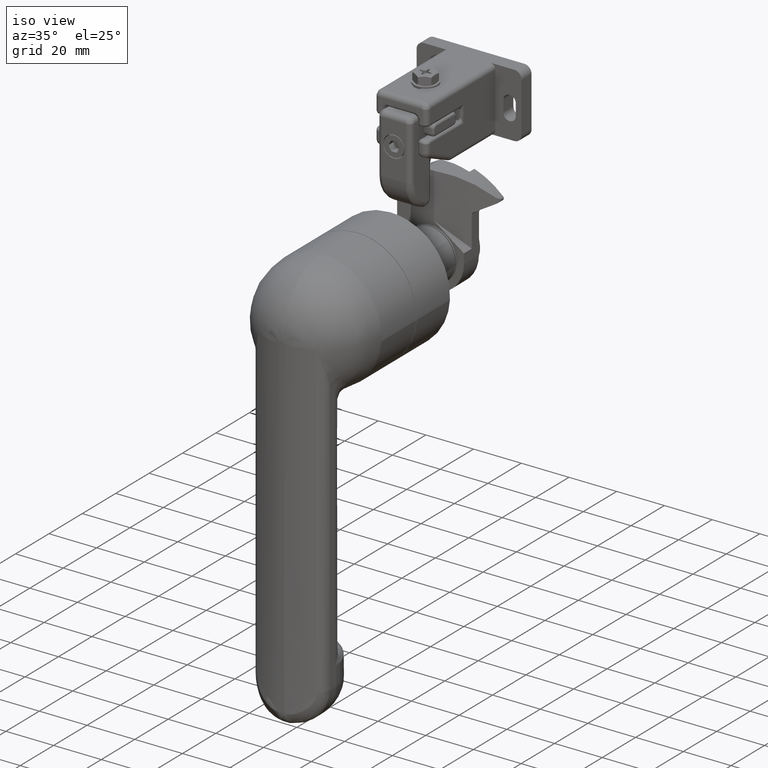
[diagram: clean part render]
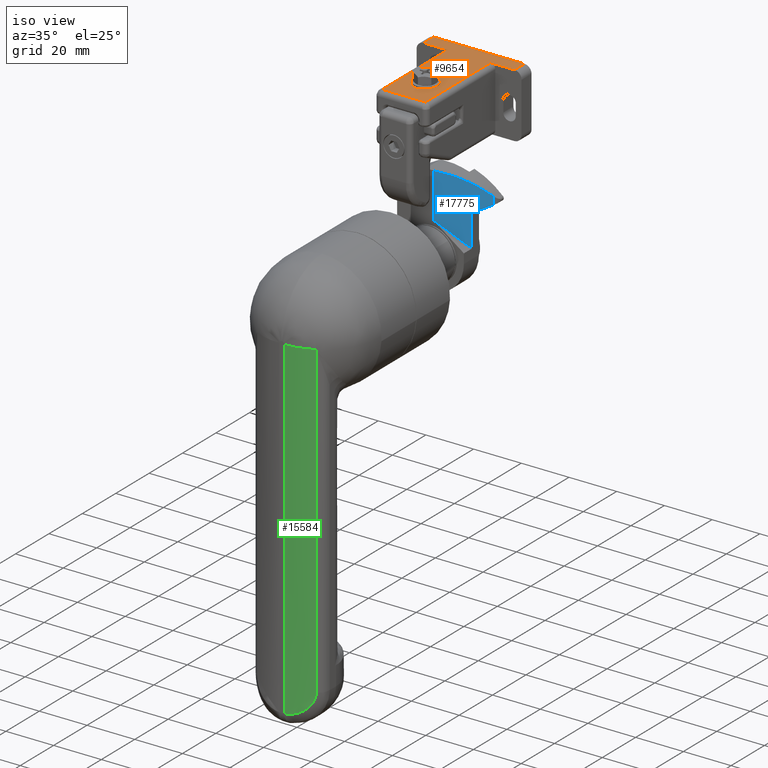
[diagram: same view with three faces highlighted in distinct colors, each labeled with its STEP entity id]
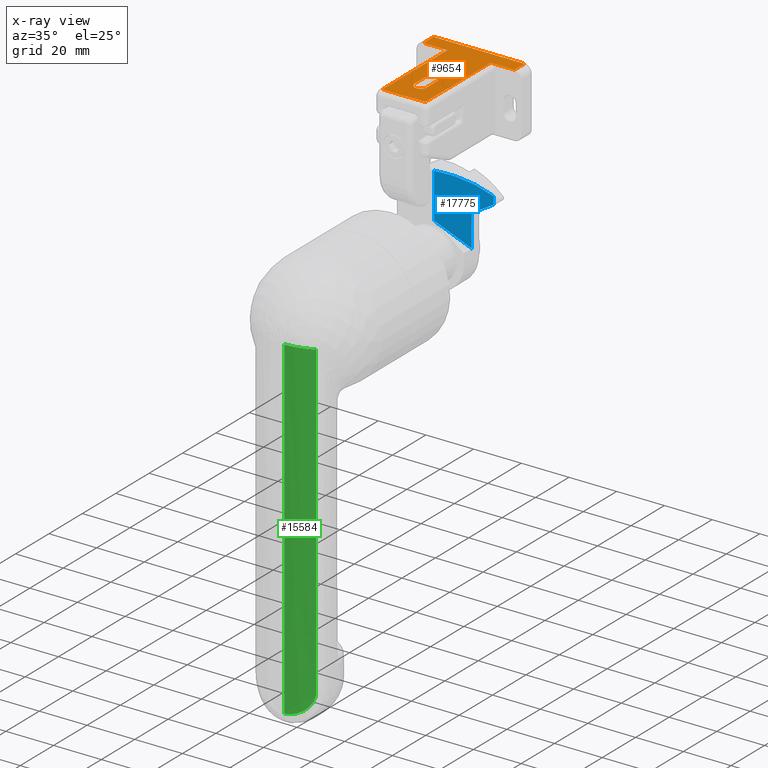
[diagram: x-ray of the same camera — body ghosted, the three highlighted faces saturated]
A machine part, iso view with three faces highlighted in distinct colors.
The next image is the same camera in x-ray (body ghosted, the three faces saturated) — at least one of them is partly hidden behind the body in this view.
Their STEP definitions:

[orange] entity #9654 — the highlighted face is a freeform B-spline surface patch.
#7510=CARTESIAN_POINT('',(-25.249999999969301,31.999999999956099,60.999999999670202));
#7511=VERTEX_POINT('',#7510);
#7512=CARTESIAN_POINT('',(-15.250000000033280,31.999999999946098,60.999999999670202));
#7513=VERTEX_POINT('',#7512);
#7514=CARTESIAN_POINT('',(-25.249999999969301,31.999999999956099,60.999999999670202));
#7515=CARTESIAN_POINT('',(-15.250000000033280,31.999999999946098,60.999999999670202));
#7516=QUASI_UNIFORM_CURVE('',1,(#7514,#7515),.UNSPECIFIED.,.F.,.U.);
#7517=EDGE_CURVE('',#7511,#7513,#7516,.T.);
#7605=CARTESIAN_POINT('',(-25.249999999969301,38.0,60.999999999670202));
#7606=VERTEX_POINT('',#7605);
#7619=CARTESIAN_POINT('',(12.749999999966651,38.0,60.999999999670202));
#7620=VERTEX_POINT('',#7619);
#7621=CARTESIAN_POINT('',(12.749999999966651,38.0,60.999999999670202));
#7622=CARTESIAN_POINT('',(-25.249999999969301,38.0,60.999999999670202));
#7623=QUASI_UNIFORM_CURVE('',1,(#7621,#7622),.UNSPECIFIED.,.F.,.U.);
#7624=EDGE_CURVE('',#7620,#7606,#7623,.T.);
#8564=CARTESIAN_POINT('',(2.749999999966720,-7.000000000826603,60.999999999670202));
#8565=VERTEX_POINT('',#8564);
#8624=CARTESIAN_POINT('',(-15.250000000033280,-7.000000000826603,60.999999999670202));
#8625=VERTEX_POINT('',#8624);
#8645=CARTESIAN_POINT('',(-15.250000000033280,-7.000000000826603,60.999999999670202));
#8646=CARTESIAN_POINT('',(2.749999999966720,-7.000000000826603,60.999999999670202));
#8647=QUASI_UNIFORM_CURVE('',1,(#8645,#8646),.UNSPECIFIED.,.F.,.U.);
#8648=EDGE_CURVE('',#8625,#8565,#8647,.T.);
#9064=CARTESIAN_POINT('',(2.749999999966720,31.999999999946201,60.999999999670202));
#9065=VERTEX_POINT('',#9064);
#9066=CARTESIAN_POINT('',(2.749999999966720,-7.000000000826603,60.999999999670202));
#9067=CARTESIAN_POINT('',(2.749999999966720,31.999999999946201,60.999999999670202));
#9068=QUASI_UNIFORM_CURVE('',1,(#9066,#9067),.UNSPECIFIED.,.F.,.U.);
#9069=EDGE_CURVE('',#8565,#9065,#9068,.T.);
#9109=CARTESIAN_POINT('',(-15.250000000033280,31.999999999946098,60.999999999670202));
#9110=CARTESIAN_POINT('',(-15.250000000033280,-7.000000000826603,60.999999999670202));
#9111=QUASI_UNIFORM_CURVE('',1,(#9109,#9110),.UNSPECIFIED.,.F.,.U.);
#9112=EDGE_CURVE('',#7513,#8625,#9111,.T.);
#9156=CARTESIAN_POINT('',(12.749999999966651,31.999999999956120,60.999999999670202));
#9157=VERTEX_POINT('',#9156);
#9176=CARTESIAN_POINT('',(12.749999999966651,31.999999999956120,60.999999999670202));
#9177=CARTESIAN_POINT('',(12.749999999966651,38.0,60.999999999670202));
#9178=QUASI_UNIFORM_CURVE('',1,(#9176,#9177),.UNSPECIFIED.,.F.,.U.);
#9179=EDGE_CURVE('',#9157,#7620,#9178,.T.);
#9271=CARTESIAN_POINT('',(-25.249999999969301,38.0,60.999999999670202));
#9272=CARTESIAN_POINT('',(-25.249999999969301,31.999999999956099,60.999999999670202));
#9273=QUASI_UNIFORM_CURVE('',1,(#9271,#9272),.UNSPECIFIED.,.F.,.U.);
#9274=EDGE_CURVE('',#7606,#7511,#9273,.T.);
#9581=CARTESIAN_POINT('',(-27.148099926314721,-9.247749913649166,60.999999999670202));
#9582=CARTESIAN_POINT('',(14.648100945551500,-9.247749913649166,60.999999999670202));
#9583=CARTESIAN_POINT('',(-27.148099926314721,40.247751119816620,60.999999999670202));
#9584=CARTESIAN_POINT('',(14.648100945551500,40.247751119816620,60.999999999670202));
#9585=B_SPLINE_SURFACE_WITH_KNOTS('',1,1,((#9581,#9583),(#9582,#9584)),.UNSPECIFIED.,.F.,.F.,.U.,(2,2),(2,2),(0.0,41.796200871866219),(0.0,49.495501033465793),.UNSPECIFIED.);
#9586=ORIENTED_EDGE('',*,*,#9112,.T.);
#9587=ORIENTED_EDGE('',*,*,#8648,.T.);
#9588=ORIENTED_EDGE('',*,*,#9069,.T.);
#9589=CARTESIAN_POINT('',(2.749999999966720,31.999999999946201,60.999999999670202));
#9590=CARTESIAN_POINT('',(12.749999999966651,31.999999999956120,60.999999999670202));
#9591=QUASI_UNIFORM_CURVE('',1,(#9589,#9590),.UNSPECIFIED.,.F.,.U.);
#9592=EDGE_CURVE('',#9065,#9157,#9591,.T.);
#9593=ORIENTED_EDGE('',*,*,#9592,.T.);
#9594=ORIENTED_EDGE('',*,*,#9179,.T.);
#9595=ORIENTED_EDGE('',*,*,#7624,.T.);
#9596=ORIENTED_EDGE('',*,*,#9274,.T.);
#9597=ORIENTED_EDGE('',*,*,#7517,.T.);
#9598=EDGE_LOOP('',(#9586,#9587,#9588,#9593,#9594,#9595,#9596,#9597));
#9599=FACE_OUTER_BOUND('',#9598,.T.);
#9600=CARTESIAN_POINT('',(-3.649999999993105,8.949999999973603,60.999999999670159));
#9601=VERTEX_POINT('',#9600);
#9602=CARTESIAN_POINT('',(-3.649999999991705,3.049999999973593,61.0));
#9603=VERTEX_POINT('',#9602);
#9604=CARTESIAN_POINT('',(-3.649999999993105,8.949999999973603,60.999999999670159));
#9605=CARTESIAN_POINT('',(-3.649999999991705,3.049999999973593,61.0));
#9606=QUASI_UNIFORM_CURVE('',1,(#9604,#9605),.UNSPECIFIED.,.F.,.U.);
#9607=EDGE_CURVE('',#9601,#9603,#9606,.T.);
#9608=ORIENTED_EDGE('',*,*,#9607,.T.);
#9609=CARTESIAN_POINT('',(-8.849999999991706,3.049999999973593,61.0));
#9610=VERTEX_POINT('',#9609);
#9611=CARTESIAN_POINT('',(-3.649999999991705,3.049999999973593,61.0));
#9612=CARTESIAN_POINT('',(-3.649793817936900,2.752177854169943,61.0));
#9613=CARTESIAN_POINT('',(-3.746084601533176,2.199300066608274,60.999999999999993));
#9614=CARTESIAN_POINT('',(-4.161535497369043,1.421591884301947,61.000000000000007));
#9615=CARTESIAN_POINT('',(-4.747978007623372,0.876929857628468,61.0));
#9616=CARTESIAN_POINT('',(-5.503669618889058,0.519513186514402,61.000000000000021));
#9617=CARTESIAN_POINT('',(-6.229586642617522,0.411847440725808,61.000000000000043));
#9618=CARTESIAN_POINT('',(-6.907987553520546,0.512616748726835,60.999999999999993));
#9619=CARTESIAN_POINT('',(-7.446437253049782,0.720311530194344,61.000000000000028));
#9620=CARTESIAN_POINT('',(-7.948798224073072,1.047069580847129,60.999999999999972));
#9621=CARTESIAN_POINT('',(-8.372487287257739,1.503163503434294,60.999999999999957));
#9622=CARTESIAN_POINT('',(-8.744012373462949,2.178173418990390,61.000000000000298));
#9623=CARTESIAN_POINT('',(-8.850374304547611,2.709610972001208,60.999999999999361));
#9624=CARTESIAN_POINT('',(-8.849999999991706,3.049999999973593,61.0));
#9625=B_SPLINE_CURVE_WITH_KNOTS('',3,(#9611,#9612,#9613,#9614,#9615,#9616,#9617,#9618,#9619,#9620,#9621,#9622,#9623,#9624),.UNSPECIFIED.,.F.,.U.,(4,1,1,1,1,1,1,1,1,1,1,4),(0.000000945819551,0.893401051412216,1.659173226898862,2.616456274955854,3.254586852326219,4.147909609299685,4.786051999242304,5.296648592440524,5.870987109371857,6.572985163980509,7.147377487416442,8.168345871718881),.UNSPECIFIED.);
#9626=EDGE_CURVE('',#9603,#9610,#9625,.T.);
#9627=ORIENTED_EDGE('',*,*,#9626,.T.);
#9628=CARTESIAN_POINT('',(-8.849999999993109,8.949999999973002,61.0));
#9629=VERTEX_POINT('',#9628);
#9630=CARTESIAN_POINT('',(-8.849999999991706,3.049999999973593,61.0));
#9631=CARTESIAN_POINT('',(-8.849999999993109,8.949999999973002,61.0));
#9632=QUASI_UNIFORM_CURVE('',1,(#9630,#9631),.UNSPECIFIED.,.F.,.U.);
#9633=EDGE_CURVE('',#9610,#9629,#9632,.T.);
#9634=ORIENTED_EDGE('',*,*,#9633,.T.);
#9635=CARTESIAN_POINT('',(-8.849999999993109,8.949999999973002,61.0));
#9636=CARTESIAN_POINT('',(-8.850290132243266,9.269104737304762,61.000000000000007));
#9637=CARTESIAN_POINT('',(-8.738935379857740,9.864488037416656,60.999999999999993));
#9638=CARTESIAN_POINT('',(-8.337615353808785,10.553191913877610,61.000000000000043));
#9639=CARTESIAN_POINT('',(-7.847335114892182,11.031397759264950,60.999999999999929));
#9640=CARTESIAN_POINT('',(-7.369411979968220,11.317854580677810,61.000000000000043));
#9641=CARTESIAN_POINT('',(-6.844509197765464,11.498420948222700,61.000000000000028));
#9642=CARTESIAN_POINT('',(-6.335544488857700,11.567534612874210,60.999999999999972));
#9643=CARTESIAN_POINT('',(-5.674661353991623,11.518972576590199,61.000000000000171));
#9644=CARTESIAN_POINT('',(-4.983670168481117,11.271701553036330,60.999999999995261));
#9645=CARTESIAN_POINT('',(-4.288514604065351,10.729304463434859,61.000000000029267));
#9646=CARTESIAN_POINT('',(-3.781343608087590,9.949552215250581,60.999999999916767));
#9647=CARTESIAN_POINT('',(-3.649638965645393,9.290383543663069,61.000000000138698));
#9648=CARTESIAN_POINT('',(-3.649999999993105,8.949999999973603,60.999999999670159));
#9649=B_SPLINE_CURVE_WITH_KNOTS('',3,(#9635,#9636,#9637,#9638,#9639,#9640,#9641,#9642,#9643,#9644,#9645,#9646,#9647,#9648),.UNSPECIFIED.,.F.,.U.,(4,1,1,1,1,1,1,1,1,1,1,4),(0.000001008778797,0.957197394128838,1.786860674344390,2.361196014525261,2.999274222183779,3.446003829913834,4.020354486825547,4.530900503347647,5.424362583143873,6.190032056124622,7.147326640741325,8.168345871695271),.UNSPECIFIED.);
#9650=EDGE_CURVE('',#9629,#9601,#9649,.T.);
#9651=ORIENTED_EDGE('',*,*,#9650,.T.);
#9652=EDGE_LOOP('',(#9608,#9627,#9634,#9651));
#9653=FACE_BOUND('',#9652,.T.);
#9654=ADVANCED_FACE('',(#9599,#9653),#9585,.T.);

[blue] entity #17775 — the highlighted face is a freeform B-spline surface patch.
#17398=CARTESIAN_POINT('',(1.499999999988892,1.110223E-013,31.964824416836649));
#17399=VERTEX_POINT('',#17398);
#17413=CARTESIAN_POINT('',(20.776144938068700,8.126531298087482,24.338278523998451));
#17414=VERTEX_POINT('',#17413);
#17415=CARTESIAN_POINT('',(1.499999999988892,1.110223E-013,31.964824416836649));
#17416=CARTESIAN_POINT('',(2.409971441301873,0.275701778675477,31.922122566071948));
#17417=CARTESIAN_POINT('',(3.307450408910026,0.561779388931470,31.841151055424270));
#17418=CARTESIAN_POINT('',(5.078805464828399,1.153612222872029,31.607022380986489));
#17419=CARTESIAN_POINT('',(5.952678542879896,1.459368902548166,31.453854301342339));
#17420=CARTESIAN_POINT('',(7.677767274345413,2.089525868312321,31.077825244471899));
#17421=CARTESIAN_POINT('',(8.528981416029422,2.413927675960965,30.854960067697210));
#17422=CARTESIAN_POINT('',(10.209337038130281,3.080333867677292,30.340427189082870));
#17423=CARTESIAN_POINT('',(11.038478205994251,3.422340052468927,30.048761030116779));
#17424=CARTESIAN_POINT('',(12.061265864561360,3.860163769283055,29.640755190749910));
#17425=CARTESIAN_POINT('',(12.265208772851871,3.948273818637639,29.556950027516791));
#17426=CARTESIAN_POINT('',(12.671443599943959,4.125382088354910,29.385083941758801));
#17427=CARTESIAN_POINT('',(13.276886215981641,4.391750373759363,29.121510824235671));
#17428=CARTESIAN_POINT('',(13.870783310620460,4.660102018353299,28.840805836898060));
#17429=CARTESIAN_POINT('',(15.043588207812901,5.199081809736314,28.256915927316012));
#17430=CARTESIAN_POINT('',(15.805498198481910,5.561443302614374,27.837729550653929));
#17431=CARTESIAN_POINT('',(17.290893576327349,6.290166723900183,26.940266501460439));
#17432=CARTESIAN_POINT('',(18.014377551681338,6.656532385757526,26.461990517984500));
#17433=CARTESIAN_POINT('',(19.423600728315321,7.390942119511431,25.445598352081198));
#17434=CARTESIAN_POINT('',(20.109341626282280,7.758991263814303,24.907488964958421));
#17435=CARTESIAN_POINT('',(20.776144938068750,8.126531298087420,24.338278523998401));
#17436=B_SPLINE_CURVE_WITH_KNOTS('',3,(#17415,#17416,#17417,#17418,#17419,#17420,#17421,#17422,#17423,#17424,#17425,#17426,#17427,#17428,#17429,#17430,#17431,#17432,#17433,#17434,#17435),.UNSPECIFIED.,.F.,.U.,(4,2,2,2,2,2,1,2,2,2,4),(0.0,0.125000000000000,0.250000000000000,0.375000000000000,0.500000000000000,0.531249999999999,0.562499999999999,0.624999999999999,0.750000000000000,0.875000000000000,1.0),.UNSPECIFIED.);
#17437=EDGE_CURVE('',#17399,#17414,#17436,.T.);
#17509=CARTESIAN_POINT('',(14.533349339004561,4.965086447786369,17.781406694451650));
#17510=VERTEX_POINT('',#17509);
#17511=CARTESIAN_POINT('',(20.776144938068750,8.126531298087430,21.075241233082352));
#17512=VERTEX_POINT('',#17511);
#17513=CARTESIAN_POINT('',(14.533349339004561,4.965086447786369,17.781406694451650));
#17514=CARTESIAN_POINT('',(17.710087804331941,6.436529577793309,19.457522900924939));
#17515=CARTESIAN_POINT('',(20.776144938068750,8.126531298087421,21.075241233082352));
#17523=(BOUNDED_CURVE()B_SPLINE_CURVE(2,(#17513,#17514,#17515),.UNSPECIFIED.,.F.,.U.)CURVE()GEOMETRIC_REPRESENTATION_ITEM()QUASI_UNIFORM_CURVE()RATIONAL_B_SPLINE_CURVE((1.0,0.999387722177533,1.0))REPRESENTATION_ITEM(''));
#17524=EDGE_CURVE('',#17510,#17512,#17523,.T.);
#17568=CARTESIAN_POINT('',(13.785683815443781,4.622499999999881,4.154307652875415));
#17569=VERTEX_POINT('',#17568);
#17570=CARTESIAN_POINT('',(13.785683815443800,4.622499999999890,3.999999999987125));
#17571=VERTEX_POINT('',#17570);
#17572=CARTESIAN_POINT('',(13.785683815443781,4.622499999999881,4.154307652875415));
#17573=CARTESIAN_POINT('',(13.785683815443800,4.622499999999890,3.999999999987125));
#17574=QUASI_UNIFORM_CURVE('',1,(#17572,#17573),.UNSPECIFIED.,.F.,.U.);
#17575=EDGE_CURVE('',#17569,#17571,#17574,.T.);
#17597=CARTESIAN_POINT('',(1.499999999977640,1.110223E-013,12.999999999987059));
#17598=VERTEX_POINT('',#17597);
#17599=CARTESIAN_POINT('',(1.499999999977640,1.110223E-013,12.999999999987059));
#17600=CARTESIAN_POINT('',(7.794863036383173,1.907208135176419,8.467698613787475));
#17601=CARTESIAN_POINT('',(13.785683815443690,4.622499999999863,4.154307652875607));
#17609=(BOUNDED_CURVE()B_SPLINE_CURVE(2,(#17599,#17600,#17601),.UNSPECIFIED.,.F.,.U.)CURVE()GEOMETRIC_REPRESENTATION_ITEM()QUASI_UNIFORM_CURVE()RATIONAL_B_SPLINE_CURVE((1.0,0.997843856359115,1.0))REPRESENTATION_ITEM(''));
#17610=EDGE_CURVE('',#17598,#17569,#17609,.T.);
#17633=CARTESIAN_POINT('',(14.000000000011500,4.719941373838021,3.999999999987105));
#17634=VERTEX_POINT('',#17633);
#17640=CARTESIAN_POINT('',(13.785683815443781,4.622499999999905,3.999999999987125));
#17641=CARTESIAN_POINT('',(13.892899258785553,4.671094546861820,3.999999999987125));
#17642=CARTESIAN_POINT('',(14.000000000011500,4.719941373838021,3.999999999987125));
#17650=(BOUNDED_CURVE()B_SPLINE_CURVE(2,(#17640,#17641,#17642),.UNSPECIFIED.,.F.,.U.)CURVE()GEOMETRIC_REPRESENTATION_ITEM()QUASI_UNIFORM_CURVE()RATIONAL_B_SPLINE_CURVE((1.0,0.999999307171656,1.0))REPRESENTATION_ITEM(''));
#17651=EDGE_CURVE('',#17571,#17634,#17650,.T.);
#17712=CARTESIAN_POINT('',(20.776144938068700,8.126531298087482,24.338278523998451));
#17713=CARTESIAN_POINT('',(20.776144938068750,8.126531298087430,21.075241233082352));
#17714=QUASI_UNIFORM_CURVE('',1,(#17712,#17713),.UNSPECIFIED.,.F.,.U.);
#17715=EDGE_CURVE('',#17414,#17512,#17714,.T.);
#17720=CARTESIAN_POINT('',(0.499332703811311,-0.297486889577544,32.663945027257896));
#17721=CARTESIAN_POINT('',(0.499332703811311,-0.297486889577544,3.283401374305336));
#17722=CARTESIAN_POINT('',(11.611125556532933,2.942891430775529,32.663945027257888));
#17723=CARTESIAN_POINT('',(11.611125556532933,2.942891430775529,3.283401374305336));
#17724=CARTESIAN_POINT('',(21.688913954960157,8.635884760943361,32.663945027257881));
#17725=CARTESIAN_POINT('',(21.688913954960157,8.635884760943361,3.283401374305336));
#17733=(BOUNDED_SURFACE()B_SPLINE_SURFACE(1,2,((#17720,#17722,#17724),(#17721,#17723,#17725)),.UNSPECIFIED.,.F.,.F.,.U.)B_SPLINE_SURFACE_WITH_KNOTS((2,2),(3,3),(0.0,29.380543652952561),(0.0,23.072232897026410),.UNSPECIFIED.)GEOMETRIC_REPRESENTATION_ITEM()RATIONAL_B_SPLINE_SURFACE(((0.998509826616327,0.991231844750187,0.997189847561138),(0.998509826616327,0.991231844750187,0.997189847561138)))REPRESENTATION_ITEM('')SURFACE());
#17734=ORIENTED_EDGE('',*,*,#17610,.T.);
#17735=ORIENTED_EDGE('',*,*,#17575,.T.);
#17736=ORIENTED_EDGE('',*,*,#17651,.T.);
#17737=CARTESIAN_POINT('',(14.000000000048701,4.719941375153640,16.896964971924351));
#17738=VERTEX_POINT('',#17737);
#17739=CARTESIAN_POINT('',(14.000000000011500,4.719941373838021,3.999999999987105));
#17740=CARTESIAN_POINT('',(14.000000000048701,4.719941375153640,16.896964971924351));
#17741=QUASI_UNIFORM_CURVE('',1,(#17739,#17740),.UNSPECIFIED.,.F.,.U.);
#17742=EDGE_CURVE('',#17634,#17738,#17741,.T.);
#17743=ORIENTED_EDGE('',*,*,#17742,.T.);
#17744=CARTESIAN_POINT('',(14.000000000048701,4.719941375153640,16.896964971924351));
#17745=CARTESIAN_POINT('',(14.000000000048701,4.719941373854981,16.991113386796471));
#17746=CARTESIAN_POINT('',(14.013036442286889,4.725883869767665,17.082769771386829));
#17747=CARTESIAN_POINT('',(14.044960550864880,4.740460268434978,17.194350968557501));
#17748=CARTESIAN_POINT('',(14.052171704519701,4.743753661463514,17.216583799076279));
#17749=CARTESIAN_POINT('',(14.067957902721471,4.750966073112209,17.260052015600142));
#17750=CARTESIAN_POINT('',(14.076548340193270,4.754892114575789,17.281359953443172));
#17751=CARTESIAN_POINT('',(14.104340287759390,4.767599234455862,17.344048363930931));
#17752=CARTESIAN_POINT('',(14.125553369302519,4.777305067853713,17.384198991997259));
#17753=CARTESIAN_POINT('',(14.173210408387479,4.799135261211005,17.461298978927680));
#17754=CARTESIAN_POINT('',(14.199839510567120,4.811344762933553,17.498418890156842));
#17755=CARTESIAN_POINT('',(14.256776273160529,4.837485541519539,17.567503648269771));
#17756=CARTESIAN_POINT('',(14.287198594579131,4.851469181057509,17.599713466732570));
#17757=CARTESIAN_POINT('',(14.351767066664721,4.881192313786832,17.659680747735369));
#17758=CARTESIAN_POINT('',(14.386049589834620,4.896994752611633,17.687530403730971));
#17759=CARTESIAN_POINT('',(14.457720155500970,4.930085220607472,17.738309953704661));
#17760=CARTESIAN_POINT('',(14.494888612308550,4.947271707073641,17.761113979759671));
#17761=CARTESIAN_POINT('',(14.533349339004561,4.965086447786359,17.781406694451650));
#17762=B_SPLINE_CURVE_WITH_KNOTS('',3,(#17744,#17745,#17746,#17747,#17748,#17749,#17750,#17751,#17752,#17753,#17754,#17755,#17756,#17757,#17758,#17759,#17760,#17761),.UNSPECIFIED.,.F.,.U.,(4,2,2,2,2,2,2,2,4),(0.0,0.249999999999982,0.312499999999985,0.374999999999987,0.499999999999989,0.624999999999992,0.749999999999995,0.874999999999997,1.0),.UNSPECIFIED.);
#17763=EDGE_CURVE('',#17738,#17510,#17762,.T.);
#17764=ORIENTED_EDGE('',*,*,#17763,.T.);
#17765=ORIENTED_EDGE('',*,*,#17524,.T.);
#17766=ORIENTED_EDGE('',*,*,#17715,.F.);
#17767=ORIENTED_EDGE('',*,*,#17437,.F.);
#17768=CARTESIAN_POINT('',(1.499999999988892,1.110223E-013,31.964824416836649));
#17769=CARTESIAN_POINT('',(1.499999999977640,1.110223E-013,12.999999999987059));
#17770=QUASI_UNIFORM_CURVE('',1,(#17768,#17769),.UNSPECIFIED.,.F.,.U.);
#17771=EDGE_CURVE('',#17399,#17598,#17770,.T.);
#17772=ORIENTED_EDGE('',*,*,#17771,.T.);
#17773=EDGE_LOOP('',(#17734,#17735,#17736,#17743,#17764,#17765,#17766,#17767,#17772));
#17774=FACE_OUTER_BOUND('',#17773,.T.);
#17775=ADVANCED_FACE('',(#17774),#17733,.T.);

[green] entity #15584 — the highlighted face is a freeform B-spline surface patch.
#13758=CARTESIAN_POINT('',(12.368421052659739,-86.136674354177700,0.0));
#13759=VERTEX_POINT('',#13758);
#13760=CARTESIAN_POINT('',(12.368421052633300,-86.136674354191996,-130.0));
#13761=VERTEX_POINT('',#13760);
#13762=CARTESIAN_POINT('',(12.368421052659739,-86.136674354177700,0.0));
#13763=CARTESIAN_POINT('',(12.368421052633300,-86.136674354191996,-130.0));
#13764=QUASI_UNIFORM_CURVE('',1,(#13762,#13763),.UNSPECIFIED.,.F.,.U.);
#13765=EDGE_CURVE('',#13759,#13761,#13764,.T.);
#14398=CARTESIAN_POINT('',(1.0,-88.999999999664908,-139.949874371065190));
#14399=VERTEX_POINT('',#14398);
#14590=CARTESIAN_POINT('',(1.0,-88.999999999664908,-139.949874371065190));
#14591=CARTESIAN_POINT('',(1.704710141942461,-88.999999999664908,-139.893803760700510));
#14592=CARTESIAN_POINT('',(2.397281450594400,-88.969032538707964,-139.791643886973500));
#14593=CARTESIAN_POINT('',(3.418401309699431,-88.880286098929176,-139.569919924504400));
#14594=CARTESIAN_POINT('',(3.755804635579515,-88.843641517539396,-139.484537152152510));
#14595=CARTESIAN_POINT('',(4.257385957922670,-88.778516810574814,-139.338754205157610));
#14596=CARTESIAN_POINT('',(4.423824878022146,-88.755115208626606,-139.287204228161900));
#14597=CARTESIAN_POINT('',(4.755169838202610,-88.704994723829302,-139.178055393308310));
#14598=CARTESIAN_POINT('',(4.920329661883950,-88.678227235226004,-139.120353661355810));
#14599=CARTESIAN_POINT('',(5.736350269445382,-88.537329095221423,-138.818536971343600));
#14600=CARTESIAN_POINT('',(6.361714641443026,-88.401565883936385,-138.533836976168490));
#14601=CARTESIAN_POINT('',(7.258908107356215,-88.171564183740017,-138.038758228234910));
#14602=CARTESIAN_POINT('',(7.551126854099893,-88.090500748088331,-137.862322977184390));
#14603=CARTESIAN_POINT('',(7.978845942058214,-87.963401996862132,-137.579383716438090));
#14604=CARTESIAN_POINT('',(8.119936709202179,-87.920026140082101,-137.481802406471900));
#14605=CARTESIAN_POINT('',(8.396829259413520,-87.832170591344010,-137.281465194675210));
#14606=CARTESIAN_POINT('',(8.532591929814595,-87.787711210660120,-137.178761139858610));
#14607=CARTESIAN_POINT('',(8.931842970464224,-87.653140196096729,-136.862902558502810));
#14608=CARTESIAN_POINT('',(9.187316012623255,-87.561828241265900,-136.642026564931600));
#14609=CARTESIAN_POINT('',(9.676455945835699,-87.378278515092106,-136.178370287608490));
#14610=CARTESIAN_POINT('',(9.910129144443655,-87.286034215966154,-135.935598946834400));
#14611=CARTESIAN_POINT('',(10.243402070123130,-87.148904008334199,-135.553372467532200));
#14612=CARTESIAN_POINT('',(10.351613710731529,-87.103403018974831,-135.422944238769300));
#14613=CARTESIAN_POINT('',(10.509430939225229,-87.035743672600063,-135.222480944386010));
#14614=CARTESIAN_POINT('',(10.561286098253060,-87.013289543420171,-135.154855684174490));
#14615=CARTESIAN_POINT('',(10.663457811641900,-86.968629713701930,-135.017939267446710));
#14616=CARTESIAN_POINT('',(10.713836741898501,-86.946396137227069,-134.948558877939210));
#14617=CARTESIAN_POINT('',(10.960979344768591,-86.836339740886913,-134.598471056738500));
#14618=CARTESIAN_POINT('',(11.142860126771970,-86.752147547551601,-134.309285001799400));
#14619=CARTESIAN_POINT('',(11.473605346135860,-86.594840252597734,-133.711154905694510));
#14620=CARTESIAN_POINT('',(11.622483896868980,-86.521716871010227,-133.402220183336510));
#14621=CARTESIAN_POINT('',(11.818936436817101,-86.423257914452478,-132.922196206284210));
#14622=CARTESIAN_POINT('',(11.879930376576780,-86.392314179534324,-132.759410145252900));
#14623=CARTESIAN_POINT('',(11.992398879743631,-86.334740631742307,-132.427865501583910));
#14624=CARTESIAN_POINT('',(12.043518074468601,-86.308293477552638,-132.260124546913690));
#14625=CARTESIAN_POINT('',(12.135038484716899,-86.260611005578596,-131.921226844349010));
#14626=CARTESIAN_POINT('',(12.175518342755529,-86.239334863963265,-131.749751053226300));
#14627=CARTESIAN_POINT('',(12.245268741721951,-86.202487746000600,-131.403945798874300));
#14628=CARTESIAN_POINT('',(12.274418423020380,-86.186981670434676,-131.230286191604700));
#14629=CARTESIAN_POINT('',(12.344601132907730,-86.149535160389647,-130.707009408830200));
#14630=CARTESIAN_POINT('',(12.368421052631440,-86.136674354210101,-130.355099368791200));
#14631=CARTESIAN_POINT('',(12.368421052631440,-86.136674354210086,-130.0));
#14632=B_SPLINE_CURVE_WITH_KNOTS('',3,(#14590,#14591,#14592,#14593,#14594,#14595,#14596,#14597,#14598,#14599,#14600,#14601,#14602,#14603,#14604,#14605,#14606,#14607,#14608,#14609,#14610,#14611,#14612,#14613,#14614,#14615,#14616,#14617,#14618,#14619,#14620,#14621,#14622,#14623,#14624,#14625,#14626,#14627,#14628,#14629,#14630,#14631),.UNSPECIFIED.,.F.,.U.,(4,2,2,2,2,2,2,2,2,2,2,2,2,2,2,2,2,2,2,2,4),(0.0,0.125000000000007,0.187500000000010,0.218750000000012,0.250000000000014,0.375000000000021,0.437500000000024,0.468750000000024,0.500000000000024,0.562500000000024,0.625000000000023,0.656250000000023,0.671875000000022,0.687500000000022,0.750000000000020,0.812500000000019,0.843750000000016,0.875000000000013,0.906250000000009,0.937500000000006,1.0),.UNSPECIFIED.);
#14633=EDGE_CURVE('',#14399,#13761,#14632,.T.);
#15546=CARTESIAN_POINT('',(0.416889683223748,-88.992915253098957,3.498746859276634));
#15547=CARTESIAN_POINT('',(0.416889683223748,-88.992915253098957,-143.536089901823770));
#15548=CARTESIAN_POINT('',(7.085447969048175,-89.154984142744681,3.498746859276634));
#15549=CARTESIAN_POINT('',(7.085447969048175,-89.154984142744681,-143.536089901823740));
#15550=CARTESIAN_POINT('',(12.881227926142403,-85.852731786341039,3.498746859276634));
#15551=CARTESIAN_POINT('',(12.881227926142403,-85.852731786341039,-143.536089901823830));
#15559=(BOUNDED_SURFACE()B_SPLINE_SURFACE(1,2,((#15546,#15548,#15550),(#15547,#15549,#15551)),.UNSPECIFIED.,.F.,.F.,.U.)B_SPLINE_SURFACE_WITH_KNOTS((2,2),(3,3),(0.0,147.034836761100510),(0.0,13.092877560628111),.UNSPECIFIED.)GEOMETRIC_REPRESENTATION_ITEM()RATIONAL_B_SPLINE_SURFACE(((0.997815988773803,0.958783733924356,0.992446979231657),(0.997815988773803,0.958783733924356,0.992446979231657)))REPRESENTATION_ITEM('')SURFACE());
#15560=CARTESIAN_POINT('',(0.999999999861416,-88.999999999648395,0.0));
#15561=VERTEX_POINT('',#15560);
#15562=CARTESIAN_POINT('',(0.999999999861416,-88.999999999648395,0.0));
#15563=CARTESIAN_POINT('',(1.0,-88.999999999664908,-139.949874371065190));
#15564=QUASI_UNIFORM_CURVE('',1,(#15562,#15563),.UNSPECIFIED.,.F.,.U.);
#15565=EDGE_CURVE('',#15561,#14399,#15564,.T.);
#15566=ORIENTED_EDGE('',*,*,#15565,.T.);
#15567=ORIENTED_EDGE('',*,*,#14633,.T.);
#15568=ORIENTED_EDGE('',*,*,#13765,.F.);
#15569=CARTESIAN_POINT('',(12.368421052659739,-86.136674354177700,0.0));
#15570=CARTESIAN_POINT('',(7.044798584797757,-88.999999999650029,0.0));
#15571=CARTESIAN_POINT('',(0.999999999861416,-88.999999999648395,0.0));
#15579=(BOUNDED_CURVE()B_SPLINE_CURVE(2,(#15569,#15570,#15571),.UNSPECIFIED.,.F.,.U.)CURVE()GEOMETRIC_REPRESENTATION_ITEM()QUASI_UNIFORM_CURVE()RATIONAL_B_SPLINE_CURVE((1.0,0.969715103721686,1.0))REPRESENTATION_ITEM(''));
#15580=EDGE_CURVE('',#13759,#15561,#15579,.T.);
#15581=ORIENTED_EDGE('',*,*,#15580,.T.);
#15582=EDGE_LOOP('',(#15566,#15567,#15568,#15581));
#15583=FACE_OUTER_BOUND('',#15582,.T.);
#15584=ADVANCED_FACE('',(#15583),#15559,.T.);